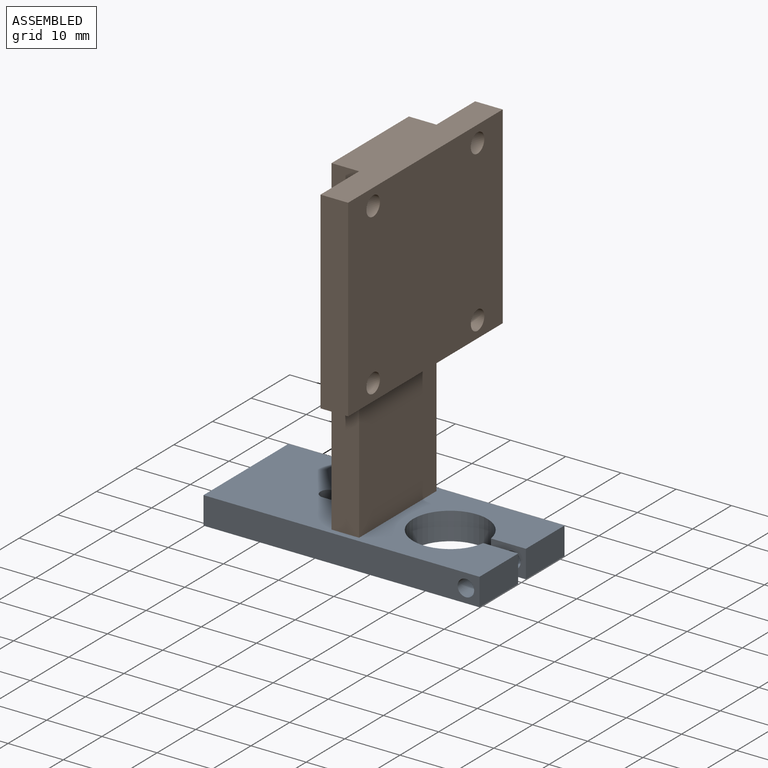
[diagram: assembled view]
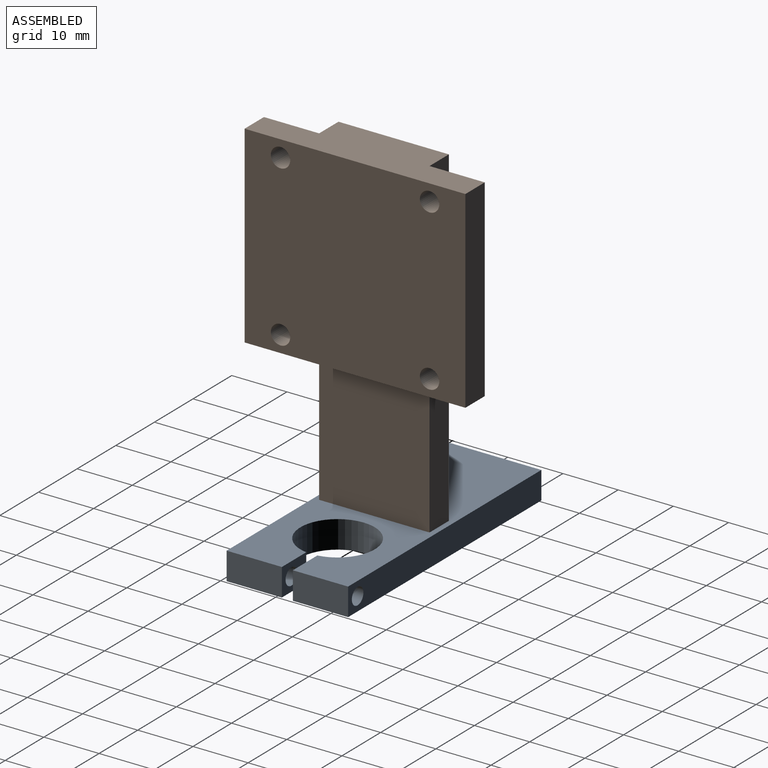
[diagram: assembled view, second angle]
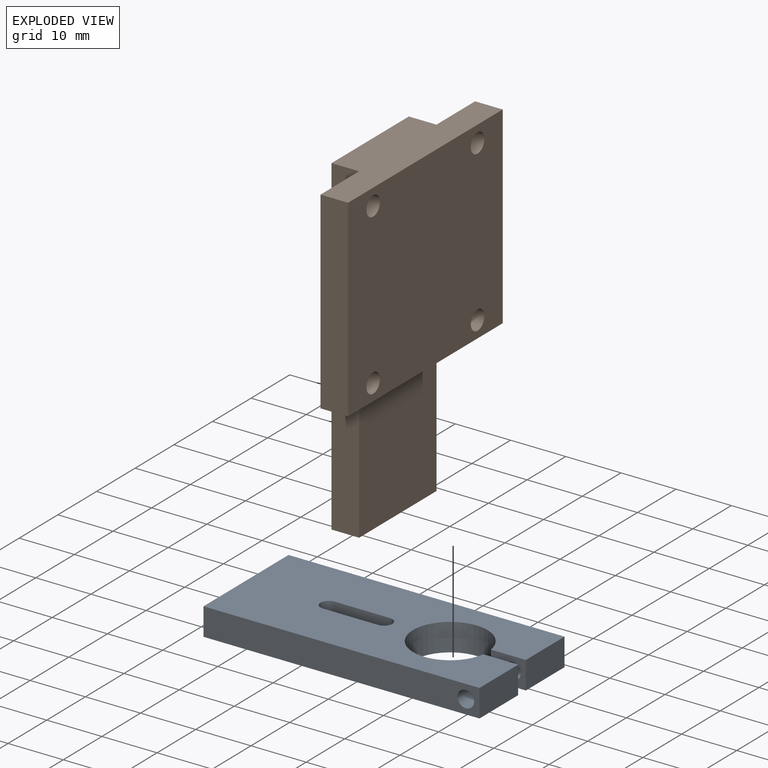
[diagram: exploded view]
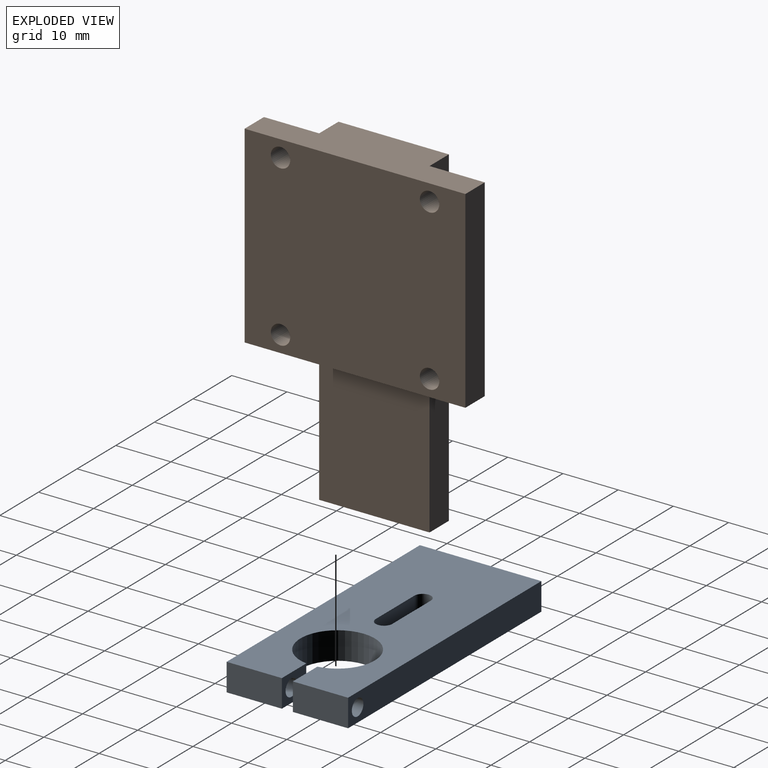
[diagram: exploded view, second angle]
ASSEMBLY  parts=2 mates=2
PART A: 16 faces, bbox 50x22x5 mm
  f0: plane 10x5mm, normal (1,0,0), area 50mm2, adj f1,f11,f12,f13
  f1: plane 6.32x5mm, normal (0,1,0), area 24.6mm2, adj f0,f2,f12,f13,f15
  f2: cylinder r=6.75mm len=13.5mm, axis (0,0,-1), area 202mm2, adj f1,f3,f12,f13
  f3: plane 6.32x5mm, normal (0,-1,0), area 24.6mm2, adj f2,f4,f12,f13,f14
  f4: plane 10x5mm, normal (1,0,0), area 50mm2, adj f3,f5,f12,f13
  f5: plane 50x5mm, normal (0,1,0), area 242.9mm2, adj f4,f6,f12,f13,f14
  f6: plane 22x5mm, normal (-1,0,0), area 110mm2, adj f5,f11,f12,f13
  f7: plane 10x5mm, normal (0,1,0), area 50mm2, adj f8,f10,f12,f13
  f8: cylinder r=1.5mm len=5mm, axis (0,0,-1), area 23.6mm2, adj f7,f9,f12,f13
  f9: plane 10x5mm, normal (0,-1,0), area 50mm2, adj f8,f10,f12,f13
  f10: cylinder r=1.5mm len=5mm, axis (0,0,-1), area 23.6mm2, adj f7,f9,f12,f13
  f11: plane 50x5mm, normal (0,-1,0), area 242.9mm2, adj f0,f6,f12,f13,f15
  f12: plane 50x22mm, normal (0,0,1), area 907.2mm2, adj f0,f1,f2,f3,f4,f5,f6,f7
  f13: plane 50x22mm, normal (0,0,-1), area 907.2mm2, adj f0,f1,f2,f3,f4,f5,f6,f7
  f14: cylinder r=1.5mm len=10mm, axis (0,-1,0), area 94.2mm2, adj f3,f5
  f15: cylinder r=1.5mm len=10mm, axis (0,-1,0), area 94.2mm2, adj f1,f11
PART B: 18 faces, bbox 10x40x60 mm
  f0: plane 25x20mm, normal (1,0,0), area 500mm2, adj f1,f3,f5,f7
  f1: plane 60x5mm, normal (0,1,0), area 300mm2, adj f0,f2,f4,f5,f15
  f2: plane 60x20mm, normal (-1,0,0), area 1200mm2, adj f1,f3,f4,f5
  f3: plane 60x5mm, normal (0,-1,0), area 300mm2, adj f0,f2,f4,f5,f6
  f4: plane 40x10mm, normal (0,0,1), area 300mm2, adj f1,f2,f3,f6,f8,f11,f14,f15
  f5: plane 20x5mm, normal (0,0,-1), area 92.9mm2, adj f0,f1,f2,f3,f17
  f6: plane 35x10mm, normal (-1,0,0), area 330.8mm2, adj f3,f4,f7,f9,f11,f13
  f7: plane 40x5mm, normal (0,0,-1), area 200mm2, adj f0,f6,f8,f11,f14,f15
  f8: plane 35x5mm, normal (0,1,0), area 175mm2, adj f4,f7,f14,f15
  f9: cylinder r=1.75mm len=5mm, axis (-1,0,0), area 55mm2, adj f6,f14
  f10: cylinder r=1.75mm len=5mm, axis (-1,0,0), area 55mm2, adj f14,f15
  f11: plane 35x5mm, normal (0,-1,0), area 175mm2, adj f4,f6,f7,f14
  f12: cylinder r=1.75mm len=5mm, axis (-1,0,0), area 55mm2, adj f14,f15
  f13: cylinder r=1.75mm len=5mm, axis (-1,0,0), area 55mm2, adj f6,f14
  f14: plane 40x35mm, normal (1,0,0), area 1361.5mm2, adj f4,f7,f8,f9,f10,f11,f12,f13
  f15: plane 35x10mm, normal (-1,0,0), area 330.8mm2, adj f1,f4,f7,f8,f10,f12
  f16: cone r=0mm half-angle=59deg, axis (0,0,-1), area 8.2mm2, adj f17
  f17: cylinder r=1.5mm len=10mm, axis (0,0,-1), area 94.2mm2, adj f5,f16
PLACE A t=(-21.03,5.89,-6.61)mm
PLACE B t=(-21.03,5.89,-1.61)mm
MATE slider A.f10 <-> B.f16  axis (0,0,1) through (-21.03,5.89,-1.61)mm
MATE planar A.f12 <-> B.f5  axis (0,0,1) through (-23.02,5.89,-1.61)mm
